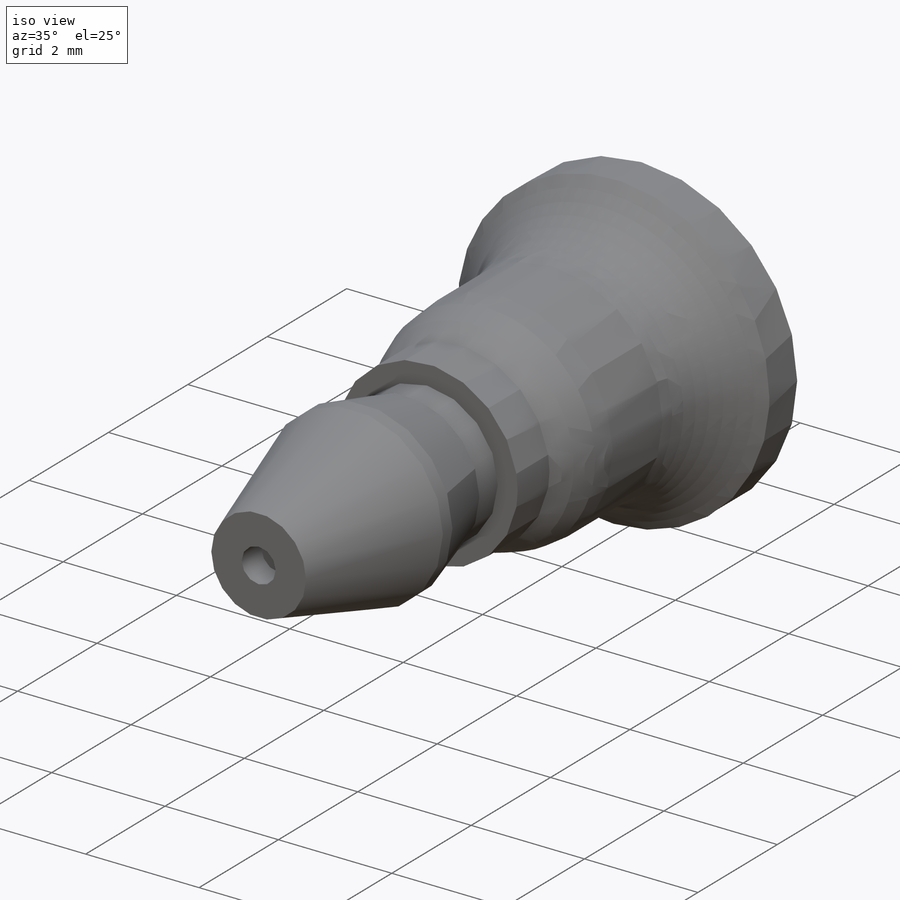
[diagram: iso view]
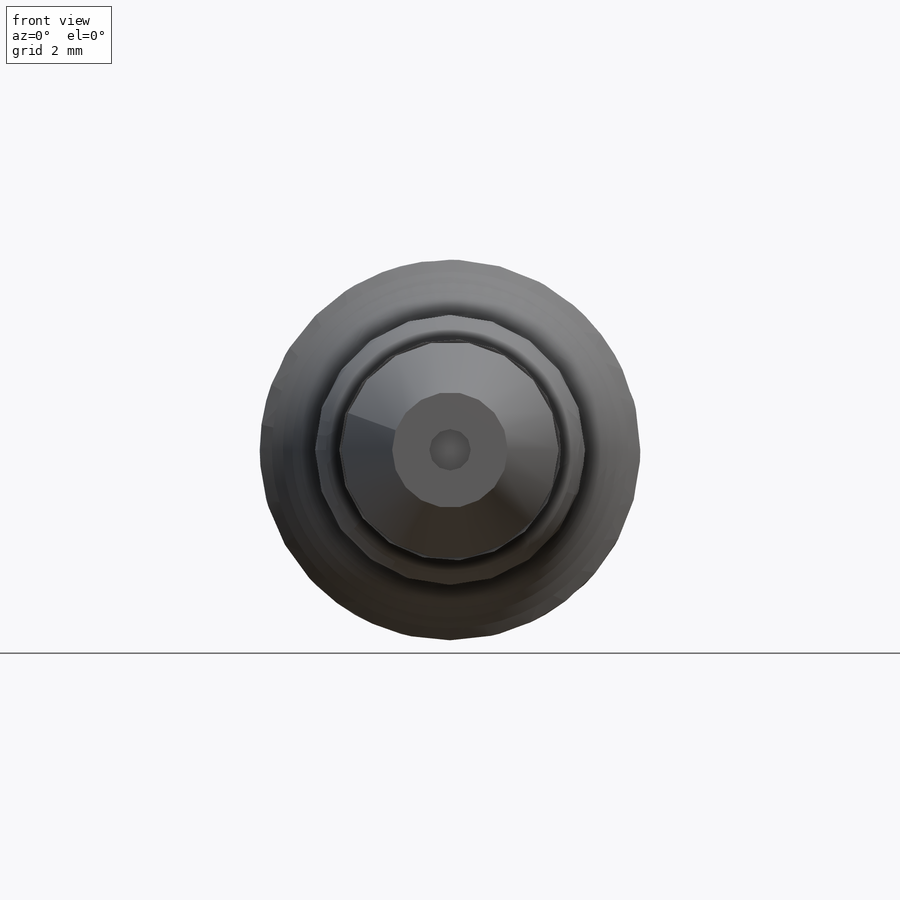
[diagram: front view]
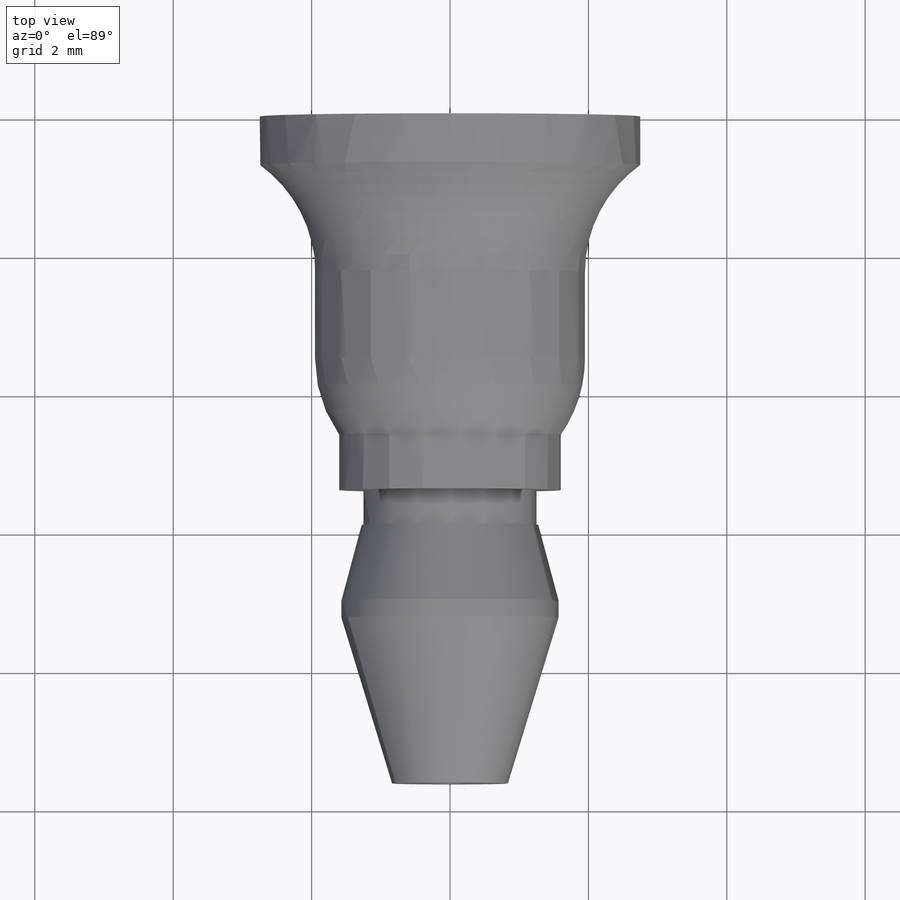
[diagram: top view]
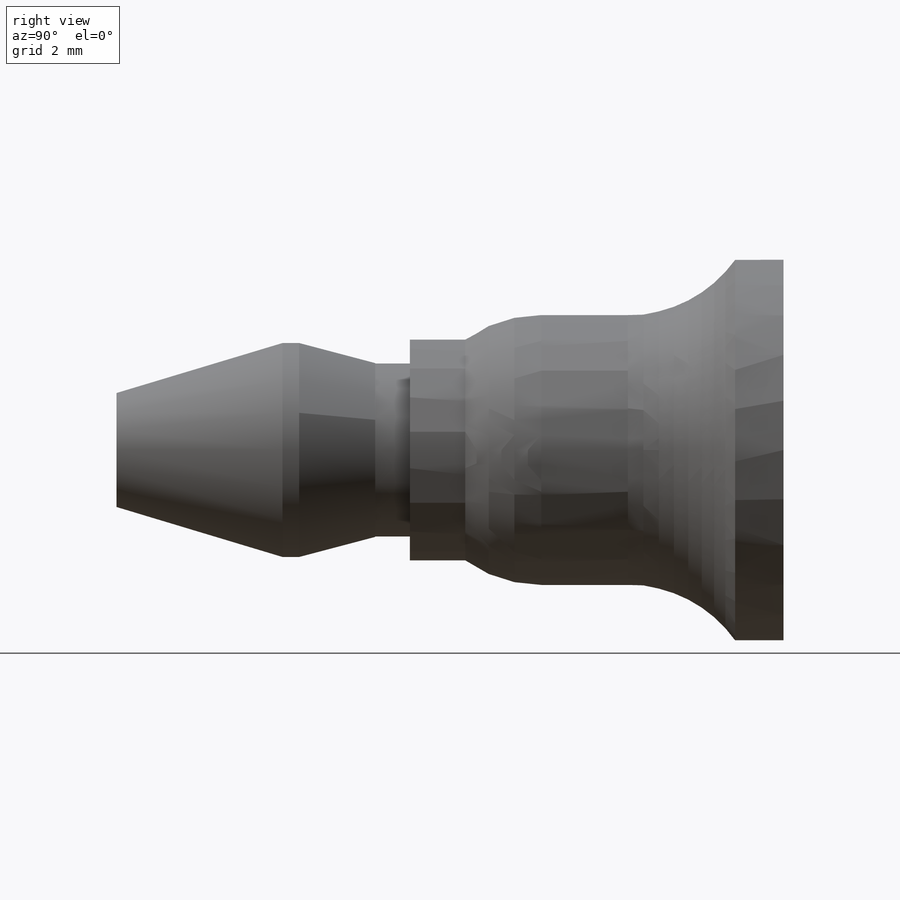
[diagram: right view]
SOLIDWORKS PART (.sldprt)
format: sldprt  version: not decoded by parser v0  size: 273,408 bytes
history: native  units: mm
features: sketch x7, extrude x6, chamfer x2, material x1, fillet x1, cut_extrude x1 (+13 scaffold rows collapsed)
feature tree (31):
  scaffold x13  (default folders/planes/origin — collapsed)
  material  "Material <not specified>"
  sketch  "Sketch3"  dims[D1=5.5mm]
  extrude  "Boss-Extrude1"  Depth=0.7mm
  sketch  "Sketch4"  dims[D1=3.9mm]
  extrude  "Boss-Extrude2"  Depth=3.9mm
  sketch  "Sketch6"  dims[D1=3.2mm]
  extrude  "Boss-Extrude3"  Depth=0.8mm
  sketch  "Sketch8"  dims[D1=2.5mm]
  extrude  "Boss-Extrude4"  Depth=0.5mm
  sketch  "Sketch10"  dims[D1=3.14mm]
  extrude  "Boss-Extrude5"  Depth=1.5mm
  sketch  "Sketch11"  dims[D1=3.14mm D2=2.4mm]
  extrude  "Boss-Extrude6"  Depth=2.24mm
  fillet  "Fillet5"  Radius=1.9mm
  chamfer  "Chamfer1"  Distance=2.4mm Angle=17deg
  chamfer  "Chamfer2"  Distance=1.1mm Angle=15deg
  sketch  "Sketch12"  dims[D1=0.5mm]
  cut_extrude  "Cut-Extrude1"  Depth=0.5mm
decode coverage: 17 of 17 modeling features carry decoded parameters
note: suppression state not decoded; provenance and decode notes live in map.json
